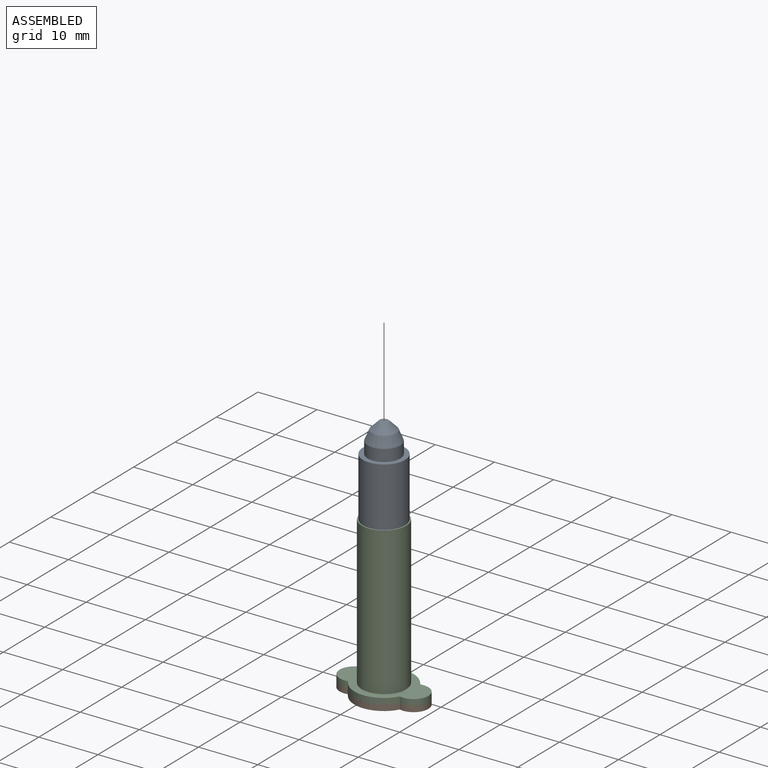
[diagram: assembled view]
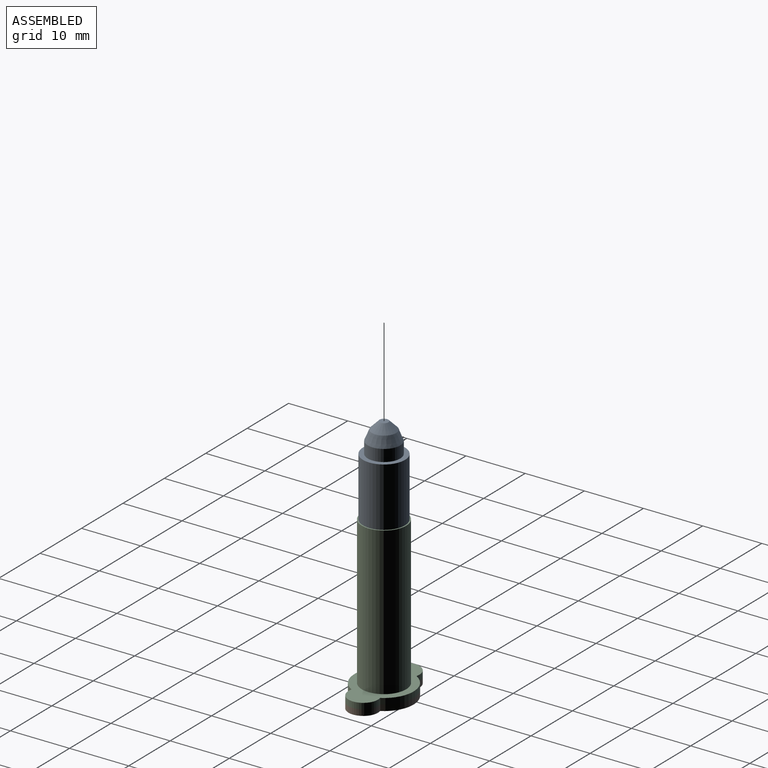
[diagram: assembled view, second angle]
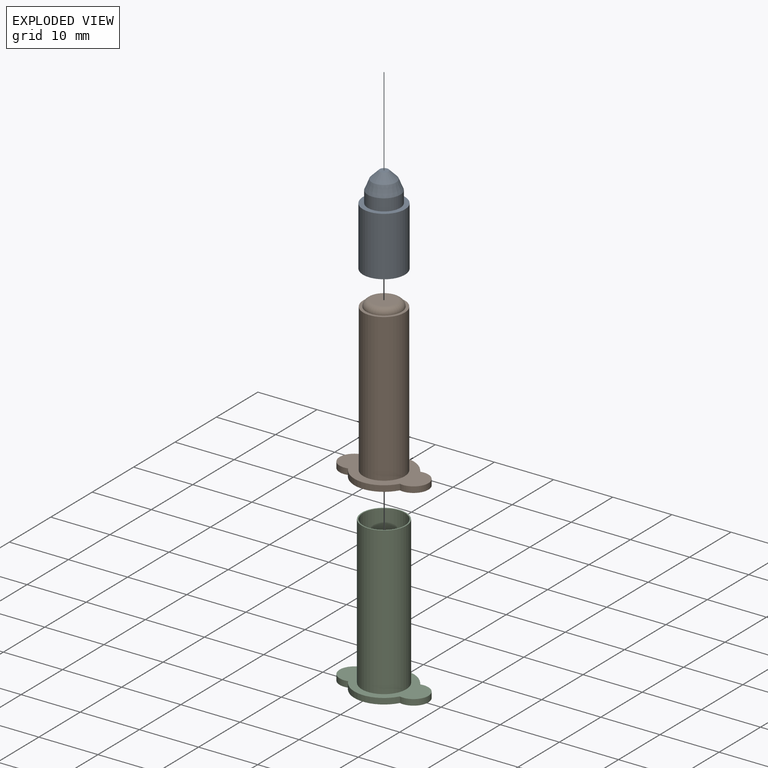
[diagram: exploded view]
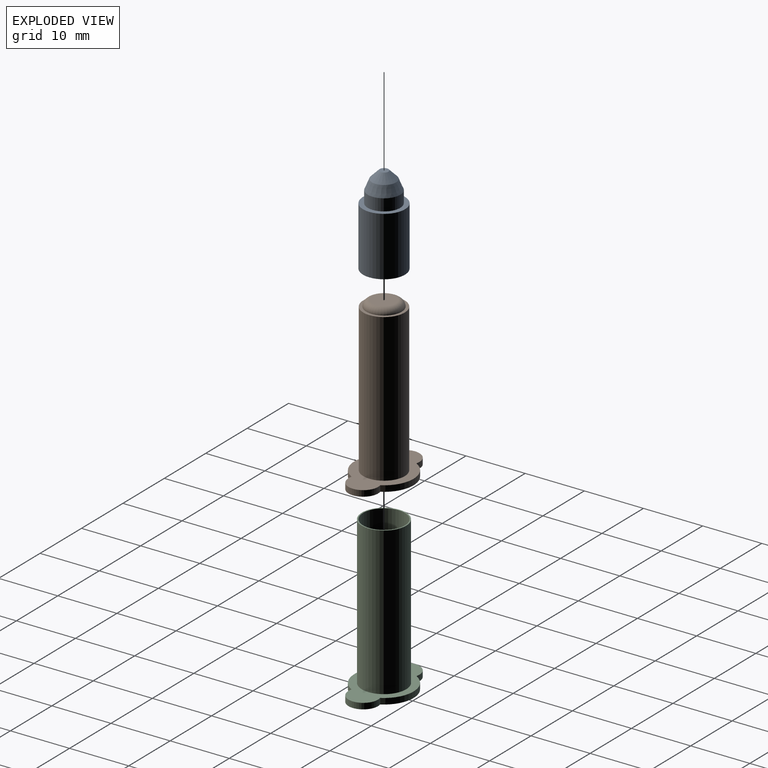
[diagram: exploded view, second angle]
ASSEMBLY  parts=3 mates=2
PART A: 12 faces, bbox 7.1x7.1x30 mm
  f0: cylinder r=2.55mm len=10mm, axis (0,0,-1), area 160.2mm2, adj f3,f6
  f1: cylinder r=3.55mm len=10mm, axis (0,0,-1), area 223.1mm2, adj f2,f3
  f2: plane 7.1x7.1mm, normal (0,0,1), area 15.8mm2, adj f1,f5
  f3: plane 7.1x7.1mm, normal (0,0,-1), area 19.2mm2, adj f0,f1
  f4: plane 1.5x1.5mm, normal (0,0,1), area 1.8mm2, adj f7,f9
  f5: cylinder r=2.75mm len=5.5mm, axis (0,0,-1), area 34.6mm2, adj f2,f8
  f6: plane 5.1x5.1mm, normal (0,0,-1), area 20.4mm2, adj f0,f11
  f7: cone r=0.75mm half-angle=45deg, axis (0,0,-1), area 16mm2, adj f4,f8
  f8: cone r=2.75mm half-angle=22.5deg, axis (0,0,-1), area 27.8mm2, adj f5,f7
  f9: cylinder r=0.05mm len=15mm, axis (0,0,-1), area 4.7mm2, adj f4,f10
  f10: plane 0.1x0.1mm, normal (0,0,1), area 0mm2, adj f9,f11
  f11: cylinder r=0.04mm len=20mm, axis (0,0,1), area 5mm2, adj f6,f10
PART B: 10 faces, bbox 15x10x27 mm
  f0: cylinder r=2.5mm len=5mm, axis (0,0,-1), area 9.1mm2, adj f1,f3,f4,f5
  f1: cylinder r=5mm len=8.75mm, axis (0,0,-1), area 10.7mm2, adj f0,f2,f4,f5
  f2: cylinder r=2.5mm len=5mm, axis (0,0,-1), area 9.1mm2, adj f1,f3,f4,f5
  f3: cylinder r=5mm len=8.75mm, axis (0,0,-1), area 10.7mm2, adj f0,f2,f4,f5
  f4: plane 15x10mm, normal (0,0,1), area 61.8mm2, adj f0,f1,f2,f3,f6
  f5: plane 15x10mm, normal (0,0,-1), area 100.3mm2, adj f0,f1,f2,f3
  f6: cylinder r=3.5mm len=25mm, axis (0,0,-1), area 549.8mm2, adj f4,f7
  f7: plane 7x7mm, normal (0,0,1), area 10.2mm2, adj f6,f9
  f8: plane 4x4mm, normal (0,0,1), area 12.6mm2, adj f9
  f9: torus R=2mm, axis (0,0,1), area 26mm2, adj f7,f8
PART C: 9 faces, bbox 15x10x26 mm
  f0: cylinder r=3.75mm len=25mm, axis (0,0,-1), area 589mm2, adj f1,f7
  f1: plane 7.5x7.5mm, normal (0,0,1), area 4.6mm2, adj f0,f8
  f2: cylinder r=2.5mm len=5mm, axis (0,0,1), area 9.1mm2, adj f3,f5,f6,f7
  f3: cylinder r=5mm len=8.75mm, axis (0,0,1), area 10.7mm2, adj f2,f4,f6,f7
  f4: cylinder r=2.5mm len=5mm, axis (0,0,1), area 9.1mm2, adj f3,f5,f6,f7
  f5: cylinder r=5mm len=8.75mm, axis (0,0,1), area 10.7mm2, adj f2,f4,f6,f7
  f6: plane 15x10mm, normal (0,0,-1), area 60.7mm2, adj f2,f3,f4,f5,f8
  f7: plane 15x10mm, normal (0,0,1), area 56.1mm2, adj f0,f2,f3,f4,f5
  f8: cylinder r=3.55mm len=26mm, axis (0,0,-1), area 579.9mm2, adj f1,f6
PLACE A rot(axis=(0,0,-1),0deg) t=(-57.49,26.92,10.22)mm
PLACE B rot(axis=(0,0,-1),0deg) t=(-57.49,26.92,8.22)mm
PLACE C rot(axis=(0,0,-1),0deg) t=(-57.49,26.92,10.22)mm
MATE fastened C.f0 <-> A.f0  axis (0,0,-1) through (-57.49,26.92,35.22)mm
MATE slider B.f3 <-> C.f8  axis (0,0,1) through (-57.49,26.92,34.22)mm
